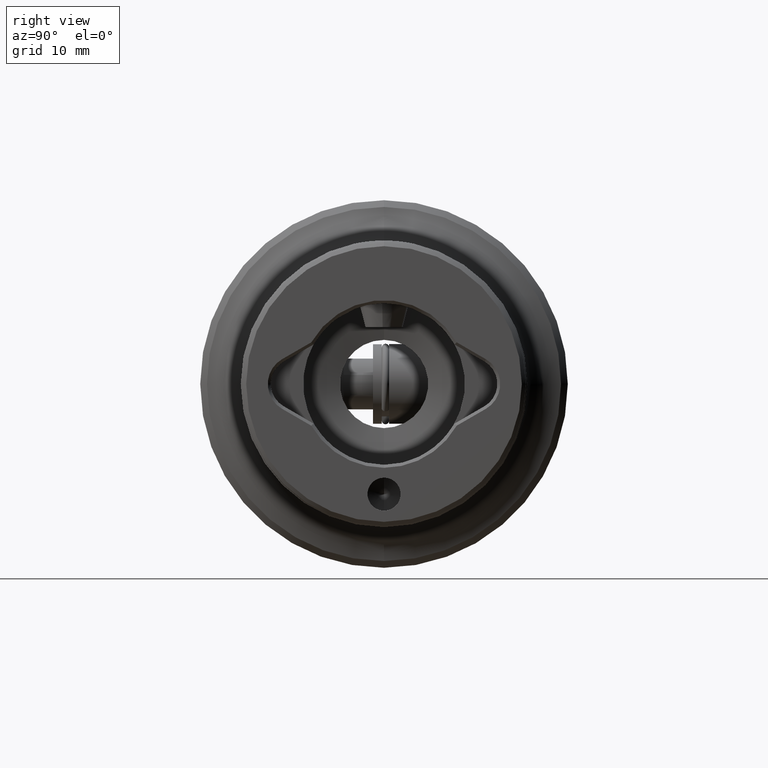
[diagram: clean part render]
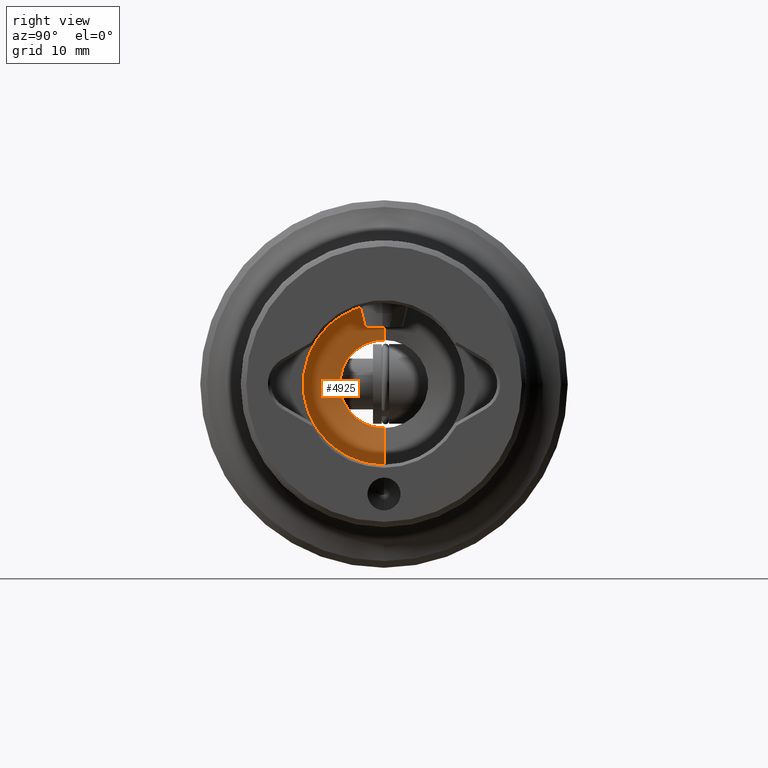
[diagram: same view with one face highlighted and labeled with its STEP entity id]
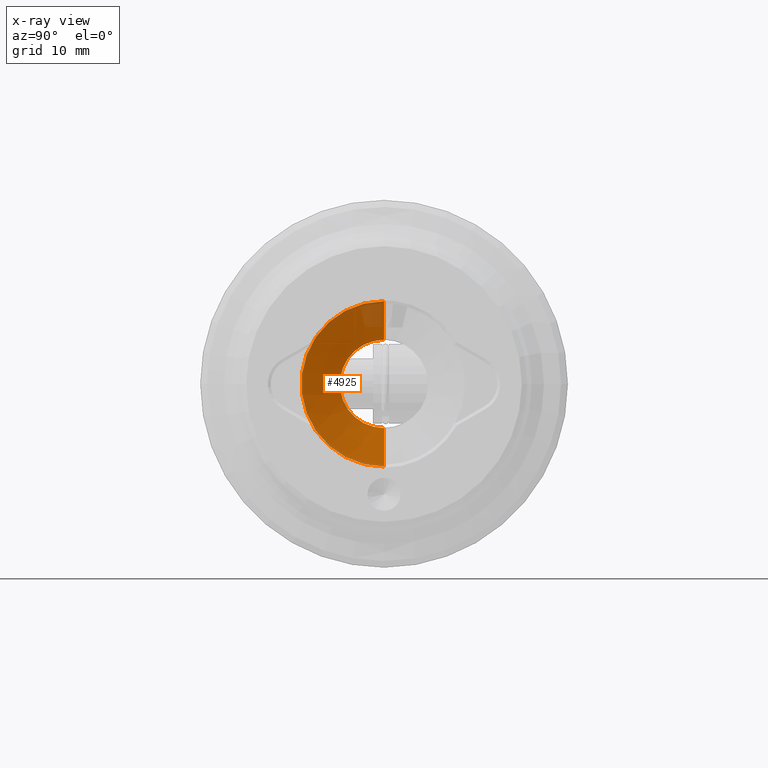
[diagram: x-ray of the same camera — body ghosted, the highlighted face saturated]
A machine part, right view. The second image highlights one B-rep face of the part: STEP entity #4925.
The next image is the same camera in x-ray: the body ghosted, the highlighted face saturated — about 12% of this face is hidden behind the body in this view.
In plain terms, the highlighted conical surface has half-angle 77 deg.
Its self-contained STEP definition (entity closure, byte-faithful):
#125 = EDGE_CURVE ( 'NONE', #133, #4379, #4713, .T. ) ;
#133 = VERTEX_POINT ( 'NONE', #4556 ) ;
#203 = CARTESIAN_POINT ( 'NONE',  ( 44.00000000000000000, 0.0000000000000000000, -11.25000000000000200 ) ) ;
#617 = DIRECTION ( 'NONE',  ( 0.2249510543438620900, 0.0000000000000000000, -0.9743700647852359100 ) ) ;
#676 = DIRECTION ( 'NONE',  ( 0.2249510543438620900, 1.193259181024238200E-016, 0.9743700647852359100 ) ) ;
#1037 = AXIS2_PLACEMENT_3D ( 'NONE', #4987, #2414, #5413 ) ;
#1099 = DIRECTION ( 'NONE',  ( 1.000000000000000000, 0.0000000000000000000, 0.0000000000000000000 ) ) ;
#1358 = ORIENTED_EDGE ( 'NONE', *, *, #125, .T. ) ;
#1591 = CARTESIAN_POINT ( 'NONE',  ( 42.78794199659080300, 0.0000000000000000000, 0.0000000000000000000 ) ) ;
#1665 = CARTESIAN_POINT ( 'NONE',  ( 44.00000000000000000, 0.0000000000000000000, -11.25000000000000200 ) ) ;
#2029 = DIRECTION ( 'NONE',  ( 0.0000000000000000000, 0.0000000000000000000, -1.000000000000000000 ) ) ;
#2074 = VERTEX_POINT ( 'NONE', #4757 ) ;
#2183 = EDGE_LOOP ( 'NONE', ( #4411, #2459, #1358, #4846 ) ) ;
#2392 = FACE_OUTER_BOUND ( 'NONE', #2183, .T. ) ;
#2402 = AXIS2_PLACEMENT_3D ( 'NONE', #2808, #1099, #4091 ) ;
#2414 = DIRECTION ( 'NONE',  ( 1.000000000000000000, 0.0000000000000000000, 0.0000000000000000000 ) ) ;
#2459 = ORIENTED_EDGE ( 'NONE', *, *, #4910, .T. ) ;
#2808 = CARTESIAN_POINT ( 'NONE',  ( 44.00000000000000000, 0.0000000000000000000, 0.0000000000000000000 ) ) ;
#3142 = CARTESIAN_POINT ( 'NONE',  ( 42.78794199659080300, 0.0000000000000000000, -5.999999999999994700 ) ) ;
#3253 = CONICAL_SURFACE ( 'NONE', #2402, 11.25000000000000200, 1.343903524035636700 ) ;
#4012 = EDGE_CURVE ( 'NONE', #2074, #5300, #4853, .T. ) ;
#4091 = DIRECTION ( 'NONE',  ( 0.0000000000000000000, 0.0000000000000000000, -1.000000000000000000 ) ) ;
#4379 = VERTEX_POINT ( 'NONE', #1665 ) ;
#4411 = ORIENTED_EDGE ( 'NONE', *, *, #4012, .F. ) ;
#4439 = AXIS2_PLACEMENT_3D ( 'NONE', #1591, #4604, #2029 ) ;
#4447 = VECTOR ( 'NONE', #617, 1000.000000000000100 ) ;
#4539 = VECTOR ( 'NONE', #676, 1000.000000000000100 ) ;
#4556 = CARTESIAN_POINT ( 'NONE',  ( 44.00000000000000000, 1.377727649040772600E-015, 11.25000000000000200 ) ) ;
#4604 = DIRECTION ( 'NONE',  ( 1.000000000000000000, 0.0000000000000000000, 0.0000000000000000000 ) ) ;
#4661 = LINE ( 'NONE', #4948, #4539 ) ;
#4713 = CIRCLE ( 'NONE', #1037, 11.25000000000000200 ) ;
#4757 = CARTESIAN_POINT ( 'NONE',  ( 42.78794199659080300, 7.347880794884112800E-016, 5.999999999999994700 ) ) ;
#4801 = EDGE_CURVE ( 'NONE', #5300, #4379, #5165, .T. ) ;
#4846 = ORIENTED_EDGE ( 'NONE', *, *, #4801, .F. ) ;
#4853 = CIRCLE ( 'NONE', #4439, 5.999999999999994700 ) ;
#4910 = EDGE_CURVE ( 'NONE', #2074, #133, #4661, .T. ) ;
#4925 = ADVANCED_FACE ( 'NONE', ( #2392 ), #3253, .F. ) ;
#4948 = CARTESIAN_POINT ( 'NONE',  ( 44.00000000000000000, 1.377727649040772600E-015, 11.25000000000000200 ) ) ;
#4987 = CARTESIAN_POINT ( 'NONE',  ( 44.00000000000000000, 0.0000000000000000000, 0.0000000000000000000 ) ) ;
#5165 = LINE ( 'NONE', #203, #4447 ) ;
#5300 = VERTEX_POINT ( 'NONE', #3142 ) ;
#5413 = DIRECTION ( 'NONE',  ( 0.0000000000000000000, 0.0000000000000000000, -1.000000000000000000 ) ) ;